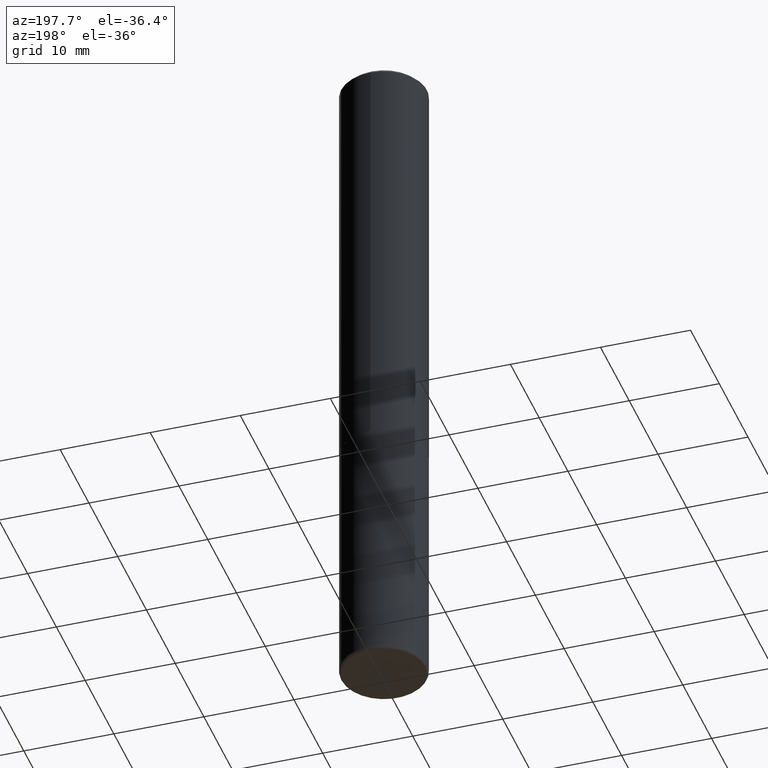
[diagram: clean part render]
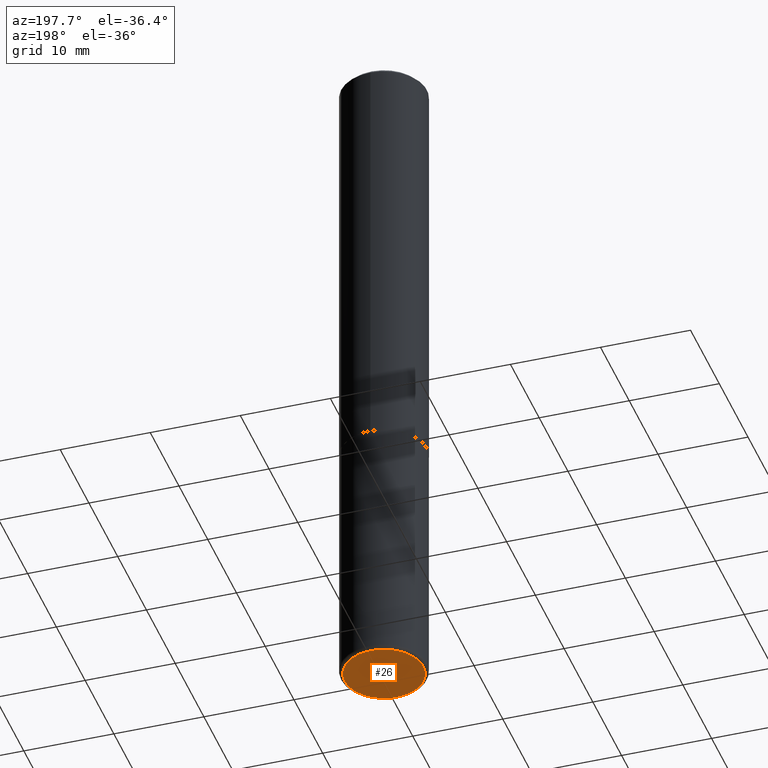
[diagram: same view with one face highlighted and labeled with its STEP entity id]
A machine part, auxiliary view. The second image highlights one B-rep face of the part: STEP entity #26.
In plain terms, the highlighted planar face has unit normal (0, -0, -1).
Its self-contained STEP definition (entity closure, byte-faithful):
#13 = EDGE_LOOP ( 'NONE', ( #412, #143 ) ) ;
#26 = ADVANCED_FACE ( 'NONE', ( #132 ), #160, .T. ) ;
#66 = CARTESIAN_POINT ( 'NONE',  ( 0.1725000000000000144, -1.167900507843031484E-14, -2.999999999999999556 ) ) ;
#76 = AXIS2_PLACEMENT_3D ( 'NONE', #104, #305, #100 ) ;
#89 = VERTEX_POINT ( 'NONE', #66 ) ;
#100 = DIRECTION ( 'NONE',  ( 1.000000000000000000, -6.982962677686261977E-15, 0.000000000000000000 ) ) ;
#104 = CARTESIAN_POINT ( 'NONE',  ( 7.336406418555408669E-29, -1.047444401652943478E-14, -2.999999999999999556 ) ) ;
#107 = EDGE_CURVE ( 'NONE', #147, #89, #273, .T. ) ;
#132 = FACE_OUTER_BOUND ( 'NONE', #13, .T. ) ;
#143 = ORIENTED_EDGE ( 'NONE', *, *, #107, .F. ) ;
#147 = VERTEX_POINT ( 'NONE', #405 ) ;
#160 = PLANE ( 'NONE',  #332 ) ;
#187 = DIRECTION ( 'NONE',  ( -2.445468806185136597E-29, 3.491481338843145583E-15, 1.000000000000000000 ) ) ;
#199 = DIRECTION ( 'NONE',  ( -1.000000000000000000, 6.982962677686265922E-15, -4.876176775795935793E-29 ) ) ;
#216 = AXIS2_PLACEMENT_3D ( 'NONE', #373, #187, #294 ) ;
#232 = CARTESIAN_POINT ( 'NONE',  ( 1.397167340320572577E-28, -9.723640385667771446E-16, -2.999999999999999556 ) ) ;
#266 = EDGE_CURVE ( 'NONE', #89, #147, #340, .T. ) ;
#273 = CIRCLE ( 'NONE', #216, 0.1725000000000000144 ) ;
#294 = DIRECTION ( 'NONE',  ( 1.000000000000000000, -6.982962677686261977E-15, 0.000000000000000000 ) ) ;
#305 = DIRECTION ( 'NONE',  ( -2.445468806185136597E-29, 3.491481338843145583E-15, 1.000000000000000000 ) ) ;
#313 = DIRECTION ( 'NONE',  ( 2.438088387897960049E-29, -3.491481338843145188E-15, -1.000000000000000000 ) ) ;
#332 = AXIS2_PLACEMENT_3D ( 'NONE', #232, #313, #199 ) ;
#340 = CIRCLE ( 'NONE', #76, 0.1725000000000000144 ) ;
#373 = CARTESIAN_POINT ( 'NONE',  ( 7.336406418555408669E-29, -1.047444401652943478E-14, -2.999999999999999556 ) ) ;
#405 = CARTESIAN_POINT ( 'NONE',  ( -0.1725000000000000144, -9.169280982119931541E-15, -2.999999999999999556 ) ) ;
#412 = ORIENTED_EDGE ( 'NONE', *, *, #266, .F. ) ;